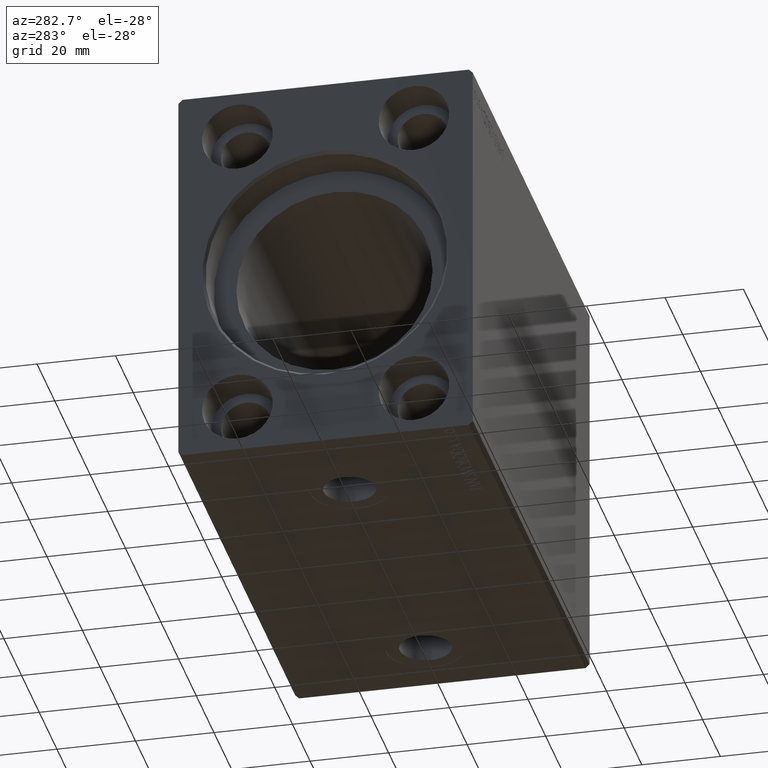
[diagram: clean part render]
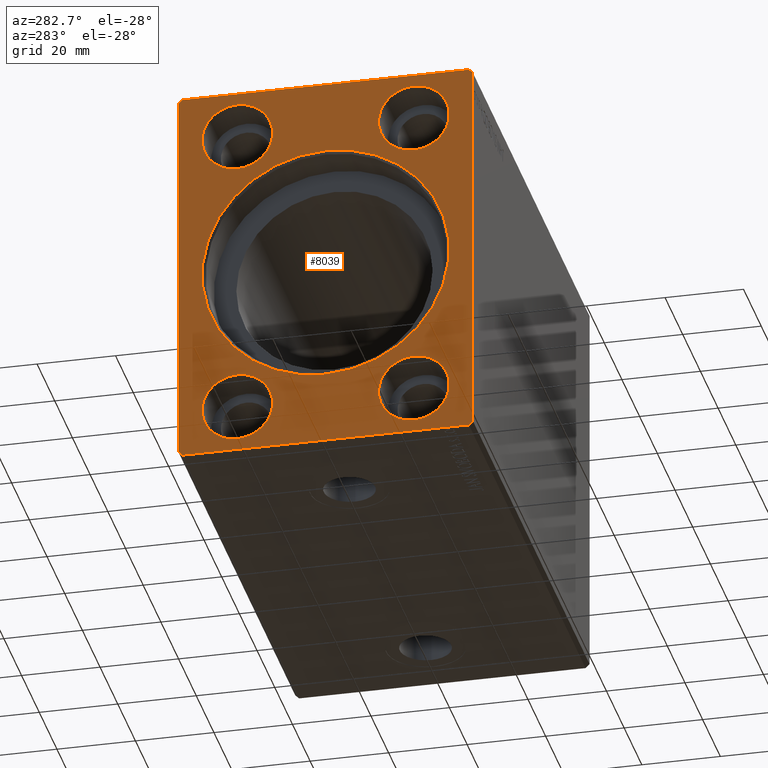
[diagram: same view with one face highlighted and labeled with its STEP entity id]
A machine part, auxiliary view. The second image highlights one B-rep face of the part: STEP entity #8039.
In plain terms, the highlighted planar face has unit normal (1, 0, 0).
Its self-contained STEP definition (entity closure, byte-faithful):
#442 = DIRECTION ( 'NONE',  ( 1.000000000000000000, -0.000000000000000000, -0.000000000000000000 ) ) ;
#1084 = CARTESIAN_POINT ( 'NONE',  ( 0.000000000000000000, 36.50000000000000711, -50.00000000000000000 ) ) ;
#1512 = VECTOR ( 'NONE', #11956, 1000.000000000000114 ) ;
#1706 = LINE ( 'NONE', #1084, #4396 ) ;
#2196 = VERTEX_POINT ( 'NONE', #22112 ) ;
#2308 = LINE ( 'NONE', #37962, #1512 ) ;
#2758 = ORIENTED_EDGE ( 'NONE', *, *, #26785, .T. ) ;
#3097 = CARTESIAN_POINT ( 'NONE',  ( 0.000000000000000000, -36.50000000000001421, 49.99999999999998579 ) ) ;
#3218 = DIRECTION ( 'NONE',  ( 0.000000000000000000, 0.000000000000000000, -1.000000000000000000 ) ) ;
#3245 = AXIS2_PLACEMENT_3D ( 'NONE', #13286, #22547, #26191 ) ;
#3840 = EDGE_CURVE ( 'NONE', #10565, #15015, #19398, .T. ) ;
#4332 = DIRECTION ( 'NONE',  ( 1.000000000000000000, -0.000000000000000000, -0.000000000000000000 ) ) ;
#4396 = VECTOR ( 'NONE', #14368, 1000.000000000000114 ) ;
#4789 = VERTEX_POINT ( 'NONE', #42181 ) ;
#5229 = EDGE_CURVE ( 'NONE', #9119, #10565, #11149, .T. ) ;
#5310 = ORIENTED_EDGE ( 'NONE', *, *, #3840, .F. ) ;
#5391 = VECTOR ( 'NONE', #20868, 1000.000000000000114 ) ;
#5599 = CARTESIAN_POINT ( 'NONE',  ( 0.000000000000000000, 22.50000000000000000, 28.99999999999999645 ) ) ;
#5858 = CARTESIAN_POINT ( 'NONE',  ( 0.000000000000000000, -36.50000000000001421, 49.99999999999998579 ) ) ;
#6264 = DIRECTION ( 'NONE',  ( 0.000000000000000000, -0.7071067811865474617, -0.7071067811865474617 ) ) ;
#6425 = CARTESIAN_POINT ( 'NONE',  ( -1.084202172485504434E-16, 0.000000000000000000, 31.45000000000003482 ) ) ;
#6658 = CARTESIAN_POINT ( 'NONE',  ( 0.000000000000000000, 36.50000000000000711, 50.00000000000000000 ) ) ;
#6893 = DIRECTION ( 'NONE',  ( 0.000000000000000000, 0.000000000000000000, -1.000000000000000000 ) ) ;
#7074 = CARTESIAN_POINT ( 'NONE',  ( 0.000000000000000000, 0.000000000000000000, 0.000000000000000000 ) ) ;
#7152 = DIRECTION ( 'NONE',  ( 0.000000000000000000, 0.000000000000000000, 1.000000000000000000 ) ) ;
#7550 = CARTESIAN_POINT ( 'NONE',  ( 0.000000000000000000, -22.50000000000000000, -38.00000000000000000 ) ) ;
#7766 = VECTOR ( 'NONE', #40394, 1000.000000000000000 ) ;
#8039 = ADVANCED_FACE ( 'NONE', ( #35594, #12183, #18434, #28523, #22301, #41641 ), #25306, .F. ) ;
#8125 = VERTEX_POINT ( 'NONE', #17110 ) ;
#8182 = DIRECTION ( 'NONE',  ( 0.000000000000000000, 0.000000000000000000, -1.000000000000000000 ) ) ;
#8651 = CARTESIAN_POINT ( 'NONE',  ( 0.000000000000000000, 37.50000000000000711, 49.00000000000000000 ) ) ;
#8854 = EDGE_CURVE ( 'NONE', #26099, #28630, #16056, .T. ) ;
#8881 = DIRECTION ( 'NONE',  ( 0.000000000000000000, 0.000000000000000000, 1.000000000000000000 ) ) ;
#9119 = VERTEX_POINT ( 'NONE', #6658 ) ;
#9176 = DIRECTION ( 'NONE',  ( 1.000000000000000000, 0.000000000000000000, 0.000000000000000000 ) ) ;
#9239 = CARTESIAN_POINT ( 'NONE',  ( 0.000000000000000000, -37.50000000000001421, 48.99999999999998579 ) ) ;
#9871 = ORIENTED_EDGE ( 'NONE', *, *, #32483, .F. ) ;
#10487 = AXIS2_PLACEMENT_3D ( 'NONE', #25736, #9176, #15191 ) ;
#10550 = CIRCLE ( 'NONE', #35891, 9.000000000000001776 ) ;
#10565 = VERTEX_POINT ( 'NONE', #3097 ) ;
#10566 = CARTESIAN_POINT ( 'NONE',  ( 0.000000000000000000, 22.50000000000000000, -38.00000000000000000 ) ) ;
#10580 = CIRCLE ( 'NONE', #34585, 9.000000000000001776 ) ;
#10773 = DIRECTION ( 'NONE',  ( -1.000000000000000000, 0.000000000000000000, 0.000000000000000000 ) ) ;
#10965 = LINE ( 'NONE', #37176, #5391 ) ;
#11009 = ORIENTED_EDGE ( 'NONE', *, *, #5229, .F. ) ;
#11149 = LINE ( 'NONE', #24486, #7766 ) ;
#11157 = VECTOR ( 'NONE', #6264, 1000.000000000000114 ) ;
#11171 = EDGE_CURVE ( 'NONE', #39099, #14890, #42119, .T. ) ;
#11410 = EDGE_LOOP ( 'NONE', ( #28155, #22434, #41421, #9871, #11499, #28883, #5310, #11009 ) ) ;
#11455 = AXIS2_PLACEMENT_3D ( 'NONE', #16125, #16987, #6893 ) ;
#11499 = ORIENTED_EDGE ( 'NONE', *, *, #30659, .F. ) ;
#11550 = CIRCLE ( 'NONE', #3245, 9.000000000000001776 ) ;
#11581 = VECTOR ( 'NONE', #41655, 1000.000000000000000 ) ;
#11672 = EDGE_CURVE ( 'NONE', #19067, #4789, #10550, .T. ) ;
#11804 = EDGE_LOOP ( 'NONE', ( #33872, #36155 ) ) ;
#11956 = DIRECTION ( 'NONE',  ( 0.000000000000000000, -0.7071067811865474617, 0.7071067811865474617 ) ) ;
#12063 = EDGE_CURVE ( 'NONE', #15412, #19268, #1706, .T. ) ;
#12183 = FACE_BOUND ( 'NONE', #11804, .T. ) ;
#12898 = CIRCLE ( 'NONE', #18397, 9.000000000000001776 ) ;
#13274 = EDGE_CURVE ( 'NONE', #28630, #26099, #10580, .T. ) ;
#13286 = CARTESIAN_POINT ( 'NONE',  ( 0.000000000000000000, -22.50000000000000000, -38.00000000000000000 ) ) ;
#13297 = DIRECTION ( 'NONE',  ( 1.000000000000000000, 0.000000000000000000, 0.000000000000000000 ) ) ;
#13371 = DIRECTION ( 'NONE',  ( -1.000000000000000000, 0.000000000000000000, 0.000000000000000000 ) ) ;
#13387 = ORIENTED_EDGE ( 'NONE', *, *, #31732, .T. ) ;
#13593 = CARTESIAN_POINT ( 'NONE',  ( 0.000000000000000000, 37.50000000000000711, -49.00000000000000000 ) ) ;
#14095 = CIRCLE ( 'NONE', #18895, 31.45000000000003482 ) ;
#14368 = DIRECTION ( 'NONE',  ( 0.000000000000000000, 0.7071067811865474617, 0.7071067811865474617 ) ) ;
#14646 = VERTEX_POINT ( 'NONE', #17697 ) ;
#14890 = VERTEX_POINT ( 'NONE', #5599 ) ;
#15015 = VERTEX_POINT ( 'NONE', #9239 ) ;
#15032 = DIRECTION ( 'NONE',  ( 0.000000000000000000, 0.000000000000000000, 1.000000000000000000 ) ) ;
#15191 = DIRECTION ( 'NONE',  ( 0.000000000000000000, 0.000000000000000000, -1.000000000000000000 ) ) ;
#15412 = VERTEX_POINT ( 'NONE', #36024 ) ;
#15444 = CIRCLE ( 'NONE', #36045, 9.000000000000001776 ) ;
#16056 = CIRCLE ( 'NONE', #40093, 9.000000000000001776 ) ;
#16125 = CARTESIAN_POINT ( 'NONE',  ( 0.000000000000000000, 22.50000000000000000, 38.00000000000000000 ) ) ;
#16735 = ORIENTED_EDGE ( 'NONE', *, *, #11171, .T. ) ;
#16771 = EDGE_LOOP ( 'NONE', ( #24440, #38341 ) ) ;
#16940 = VERTEX_POINT ( 'NONE', #8651 ) ;
#16942 = DIRECTION ( 'NONE',  ( 0.000000000000000000, 0.000000000000000000, -1.000000000000000000 ) ) ;
#16987 = DIRECTION ( 'NONE',  ( 1.000000000000000000, -0.000000000000000000, -0.000000000000000000 ) ) ;
#17110 = CARTESIAN_POINT ( 'NONE',  ( -1.084202172485504434E-16, 3.851514183318429560E-15, -31.45000000000003482 ) ) ;
#17165 = EDGE_CURVE ( 'NONE', #24559, #2196, #15444, .T. ) ;
#17418 = EDGE_CURVE ( 'NONE', #8125, #24333, #14095, .T. ) ;
#17681 = CARTESIAN_POINT ( 'NONE',  ( 0.000000000000000000, 22.50000000000000000, 47.00000000000000000 ) ) ;
#17697 = CARTESIAN_POINT ( 'NONE',  ( 0.000000000000000000, -37.50000000000001421, -49.00000000000000000 ) ) ;
#18240 = LINE ( 'NONE', #21471, #39032 ) ;
#18397 = AXIS2_PLACEMENT_3D ( 'NONE', #31858, #21583, #8881 ) ;
#18434 = FACE_BOUND ( 'NONE', #32500, .T. ) ;
#18895 = AXIS2_PLACEMENT_3D ( 'NONE', #7074, #13297, #16942 ) ;
#19067 = VERTEX_POINT ( 'NONE', #25231 ) ;
#19108 = ORIENTED_EDGE ( 'NONE', *, *, #17418, .T. ) ;
#19268 = VERTEX_POINT ( 'NONE', #13593 ) ;
#19398 = LINE ( 'NONE', #5858, #11157 ) ;
#20201 = CARTESIAN_POINT ( 'NONE',  ( 0.000000000000000000, 22.50000000000000000, 38.00000000000000000 ) ) ;
#20338 = VERTEX_POINT ( 'NONE', #30732 ) ;
#20448 = ORIENTED_EDGE ( 'NONE', *, *, #17165, .T. ) ;
#20486 = CARTESIAN_POINT ( 'NONE',  ( 0.000000000000000000, -22.50000000000000000, 38.00000000000000000 ) ) ;
#20573 = EDGE_CURVE ( 'NONE', #19268, #16940, #23123, .T. ) ;
#20868 = DIRECTION ( 'NONE',  ( 0.000000000000000000, 0.7071067811865500152, -0.7071067811865451302 ) ) ;
#21471 = CARTESIAN_POINT ( 'NONE',  ( 0.000000000000000000, -37.50000000000001421, 48.99999999999998579 ) ) ;
#21583 = DIRECTION ( 'NONE',  ( -1.000000000000000000, 0.000000000000000000, 0.000000000000000000 ) ) ;
#21716 = CARTESIAN_POINT ( 'NONE',  ( 0.000000000000000000, -22.50000000000000000, 38.00000000000000000 ) ) ;
#21782 = CIRCLE ( 'NONE', #11455, 9.000000000000001776 ) ;
#22112 = CARTESIAN_POINT ( 'NONE',  ( 0.000000000000000000, -22.50000000000000000, -47.00000000000000000 ) ) ;
#22301 = FACE_BOUND ( 'NONE', #25046, .T. ) ;
#22434 = ORIENTED_EDGE ( 'NONE', *, *, #20573, .F. ) ;
#22547 = DIRECTION ( 'NONE',  ( 1.000000000000000000, -0.000000000000000000, -0.000000000000000000 ) ) ;
#23123 = LINE ( 'NONE', #36649, #31298 ) ;
#24333 = VERTEX_POINT ( 'NONE', #6425 ) ;
#24440 = ORIENTED_EDGE ( 'NONE', *, *, #13274, .F. ) ;
#24486 = CARTESIAN_POINT ( 'NONE',  ( 0.000000000000000000, 36.50000000000000711, 50.00000000000000000 ) ) ;
#24559 = VERTEX_POINT ( 'NONE', #28940 ) ;
#25046 = EDGE_LOOP ( 'NONE', ( #20448, #36913 ) ) ;
#25231 = CARTESIAN_POINT ( 'NONE',  ( 0.000000000000000000, 22.50000000000000000, -28.99999999999999645 ) ) ;
#25306 = PLANE ( 'NONE',  #10487 ) ;
#25326 = CIRCLE ( 'NONE', #36296, 31.45000000000003482 ) ;
#25520 = DIRECTION ( 'NONE',  ( 0.000000000000000000, 0.000000000000000000, -1.000000000000000000 ) ) ;
#25736 = CARTESIAN_POINT ( 'NONE',  ( 0.000000000000000000, 0.000000000000000000, 0.000000000000000000 ) ) ;
#25858 = EDGE_CURVE ( 'NONE', #4789, #19067, #12898, .T. ) ;
#26099 = VERTEX_POINT ( 'NONE', #40232 ) ;
#26191 = DIRECTION ( 'NONE',  ( 0.000000000000000000, 0.000000000000000000, -1.000000000000000000 ) ) ;
#26252 = CARTESIAN_POINT ( 'NONE',  ( 0.000000000000000000, -22.50000000000000000, 47.00000000000000000 ) ) ;
#26785 = EDGE_CURVE ( 'NONE', #14890, #39099, #21782, .T. ) ;
#27112 = EDGE_CURVE ( 'NONE', #2196, #24559, #11550, .T. ) ;
#28155 = ORIENTED_EDGE ( 'NONE', *, *, #37815, .F. ) ;
#28523 = FACE_OUTER_BOUND ( 'NONE', #11410, .T. ) ;
#28630 = VERTEX_POINT ( 'NONE', #26252 ) ;
#28883 = ORIENTED_EDGE ( 'NONE', *, *, #32451, .F. ) ;
#28940 = CARTESIAN_POINT ( 'NONE',  ( 0.000000000000000000, -22.50000000000000000, -28.99999999999999645 ) ) ;
#30659 = EDGE_CURVE ( 'NONE', #14646, #20338, #10965, .T. ) ;
#30732 = CARTESIAN_POINT ( 'NONE',  ( 0.000000000000000000, -36.50000000000000711, -50.00000000000000000 ) ) ;
#31118 = AXIS2_PLACEMENT_3D ( 'NONE', #20201, #442, #3218 ) ;
#31298 = VECTOR ( 'NONE', #33422, 1000.000000000000000 ) ;
#31732 = EDGE_CURVE ( 'NONE', #24333, #8125, #25326, .T. ) ;
#31858 = CARTESIAN_POINT ( 'NONE',  ( 0.000000000000000000, 22.50000000000000000, -38.00000000000000000 ) ) ;
#31963 = CARTESIAN_POINT ( 'NONE',  ( 0.000000000000000000, -36.50000000000000711, -50.00000000000000000 ) ) ;
#32373 = LINE ( 'NONE', #31963, #11581 ) ;
#32451 = EDGE_CURVE ( 'NONE', #15015, #14646, #18240, .T. ) ;
#32483 = EDGE_CURVE ( 'NONE', #20338, #15412, #32373, .T. ) ;
#32500 = EDGE_LOOP ( 'NONE', ( #13387, #19108 ) ) ;
#32840 = EDGE_LOOP ( 'NONE', ( #16735, #2758 ) ) ;
#33422 = DIRECTION ( 'NONE',  ( 0.000000000000000000, 0.000000000000000000, 1.000000000000000000 ) ) ;
#33872 = ORIENTED_EDGE ( 'NONE', *, *, #11672, .F. ) ;
#33922 = DIRECTION ( 'NONE',  ( 0.000000000000000000, 0.000000000000000000, -1.000000000000000000 ) ) ;
#34585 = AXIS2_PLACEMENT_3D ( 'NONE', #21716, #35432, #15032 ) ;
#34962 = CARTESIAN_POINT ( 'NONE',  ( 0.000000000000000000, 0.000000000000000000, 0.000000000000000000 ) ) ;
#35432 = DIRECTION ( 'NONE',  ( -1.000000000000000000, 0.000000000000000000, 0.000000000000000000 ) ) ;
#35594 = FACE_BOUND ( 'NONE', #16771, .T. ) ;
#35595 = DIRECTION ( 'NONE',  ( 1.000000000000000000, 0.000000000000000000, 0.000000000000000000 ) ) ;
#35891 = AXIS2_PLACEMENT_3D ( 'NONE', #10566, #10773, #36120 ) ;
#36024 = CARTESIAN_POINT ( 'NONE',  ( 0.000000000000000000, 36.50000000000000711, -50.00000000000000000 ) ) ;
#36045 = AXIS2_PLACEMENT_3D ( 'NONE', #7550, #4332, #8182 ) ;
#36120 = DIRECTION ( 'NONE',  ( 0.000000000000000000, 0.000000000000000000, 1.000000000000000000 ) ) ;
#36155 = ORIENTED_EDGE ( 'NONE', *, *, #25858, .F. ) ;
#36296 = AXIS2_PLACEMENT_3D ( 'NONE', #34962, #35595, #25520 ) ;
#36649 = CARTESIAN_POINT ( 'NONE',  ( 0.000000000000000000, 37.50000000000000711, -49.00000000000000000 ) ) ;
#36913 = ORIENTED_EDGE ( 'NONE', *, *, #27112, .T. ) ;
#37176 = CARTESIAN_POINT ( 'NONE',  ( 0.000000000000000000, -37.50000000000001421, -49.00000000000000000 ) ) ;
#37815 = EDGE_CURVE ( 'NONE', #16940, #9119, #2308, .T. ) ;
#37962 = CARTESIAN_POINT ( 'NONE',  ( 0.000000000000000000, 37.50000000000000711, 49.00000000000000000 ) ) ;
#38341 = ORIENTED_EDGE ( 'NONE', *, *, #8854, .F. ) ;
#39032 = VECTOR ( 'NONE', #33922, 1000.000000000000000 ) ;
#39099 = VERTEX_POINT ( 'NONE', #17681 ) ;
#40093 = AXIS2_PLACEMENT_3D ( 'NONE', #20486, #13371, #7152 ) ;
#40232 = CARTESIAN_POINT ( 'NONE',  ( 0.000000000000000000, -22.50000000000000000, 28.99999999999999645 ) ) ;
#40394 = DIRECTION ( 'NONE',  ( 0.000000000000000000, -1.000000000000000000, -1.901066822988281457E-16 ) ) ;
#41421 = ORIENTED_EDGE ( 'NONE', *, *, #12063, .F. ) ;
#41641 = FACE_BOUND ( 'NONE', #32840, .T. ) ;
#41655 = DIRECTION ( 'NONE',  ( 0.000000000000000000, 1.000000000000000000, 0.000000000000000000 ) ) ;
#42119 = CIRCLE ( 'NONE', #31118, 9.000000000000001776 ) ;
#42181 = CARTESIAN_POINT ( 'NONE',  ( 0.000000000000000000, 22.50000000000000000, -47.00000000000000000 ) ) ;